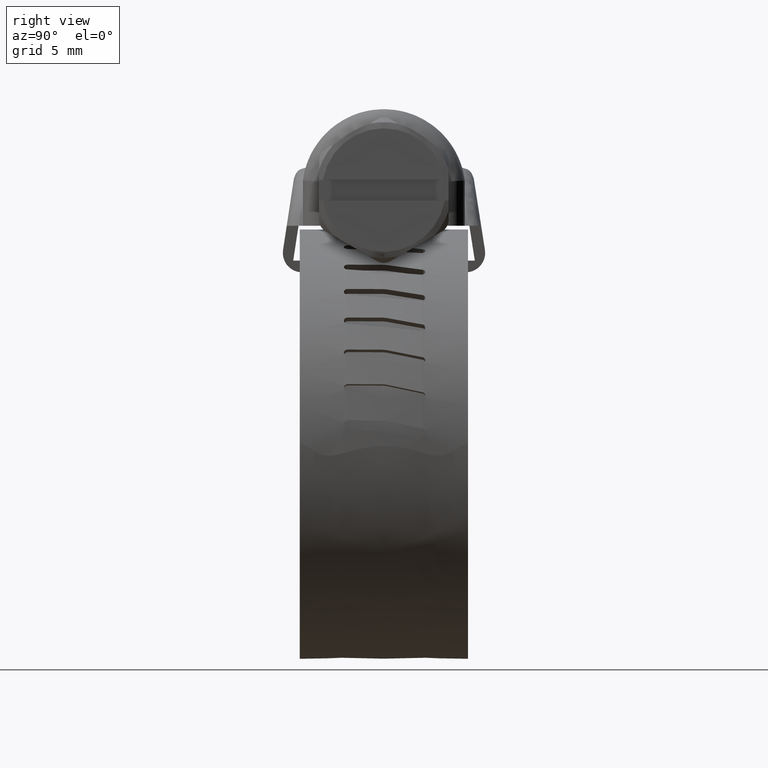
[diagram: clean part render]
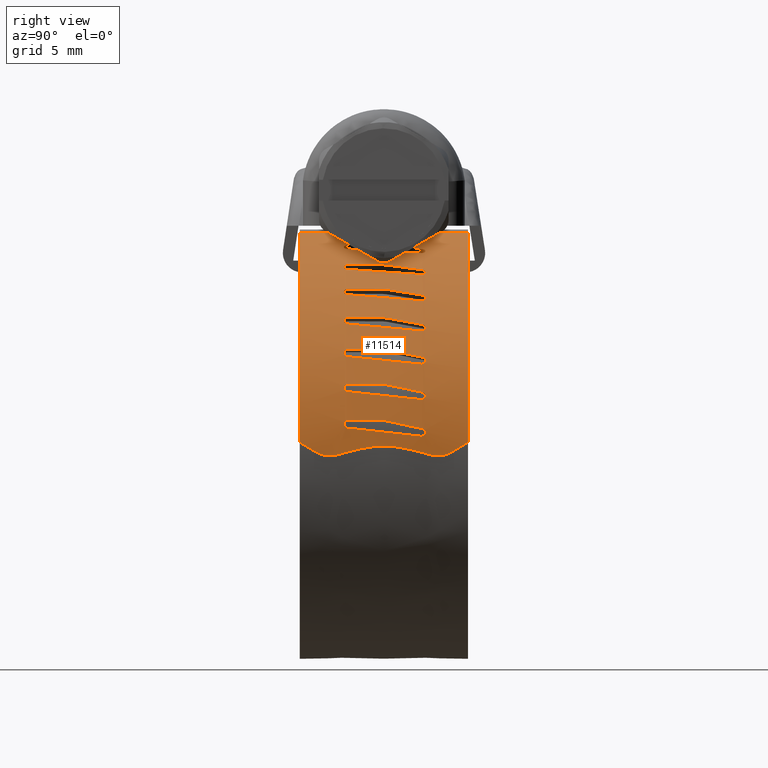
[diagram: same view with one face highlighted and labeled with its STEP entity id]
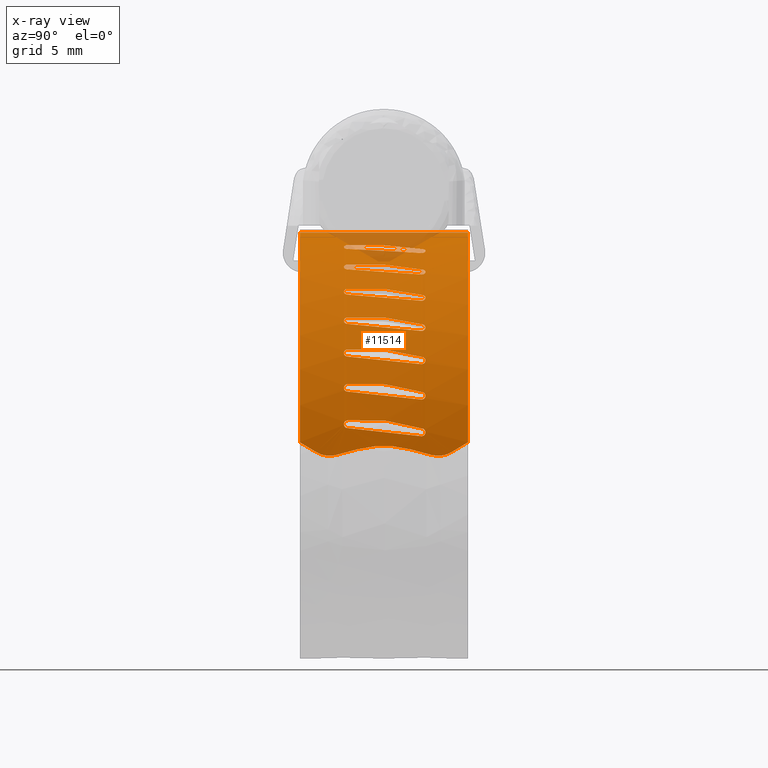
[diagram: x-ray of the same camera — body ghosted, the highlighted face saturated]
A machine part, right view. The second image highlights one B-rep face of the part: STEP entity #11514.
The next image is the same camera in x-ray: the body ghosted, the highlighted face saturated — about 5% of this face is hidden behind the body in this view.
In plain terms, the highlighted face is a freeform B-spline surface patch.
Its self-contained STEP definition (entity closure, byte-faithful):
#9053=CARTESIAN_POINT('',(7.797308189384231,-2.785584999575170,11.566297253011379));
#9054=VERTEX_POINT('',#9053);
#9060=CARTESIAN_POINT('',(8.063311772720567,-3.087113278369086,11.428180453243430));
#9061=VERTEX_POINT('',#9060);
#9062=CARTESIAN_POINT('',(7.797308189384231,-2.785584999575170,11.566297253011379));
#9063=CARTESIAN_POINT('',(7.797394998951416,-2.820000884762843,11.566593422304660));
#9064=CARTESIAN_POINT('',(7.808913288021627,-2.893756322517823,11.561216364056691));
#9065=CARTESIAN_POINT('',(7.861413636961879,-2.992788688389000,11.534349637199769));
#9066=CARTESIAN_POINT('',(7.950438511629019,-3.067739490190386,11.487867160230151));
#9067=CARTESIAN_POINT('',(8.024210775156497,-3.086961751778805,11.448922056701520));
#9068=CARTESIAN_POINT('',(8.063311772720567,-3.087113278369086,11.428180453243430));
#9069=B_SPLINE_CURVE_WITH_KNOTS('',3,(#9062,#9063,#9064,#9065,#9066,#9067,#9068),.UNSPECIFIED.,.F.,.U.,(4,1,1,1,4),(0.000000064163639,0.103258739811784,0.221270167520050,0.339278826905765,0.472040238099272),.UNSPECIFIED.);
#9070=EDGE_CURVE('',#9054,#9061,#9069,.T.);
#9072=CARTESIAN_POINT('',(8.329418577167751,-2.788650713555960,11.284042701344880));
#9073=VERTEX_POINT('',#9072);
#9074=CARTESIAN_POINT('',(8.063311772720567,-3.087113278369086,11.428180453243430));
#9075=CARTESIAN_POINT('',(8.102401161946995,-3.087392402927335,11.407446268905760));
#9076=CARTESIAN_POINT('',(8.176158574174531,-3.068991103170492,11.368134911015551));
#9077=CARTESIAN_POINT('',(8.265192963000301,-2.995061380963704,11.320166942901160));
#9078=CARTESIAN_POINT('',(8.317738188286059,-2.896656498300431,11.291313138267780));
#9079=CARTESIAN_POINT('',(8.329305739930733,-2.823054246103230,11.284444660616490));
#9080=CARTESIAN_POINT('',(8.329418577167751,-2.788650713555960,11.284042701344880));
#9081=B_SPLINE_CURVE_WITH_KNOTS('',3,(#9074,#9075,#9076,#9077,#9078,#9079,#9080),.UNSPECIFIED.,.F.,.U.,(4,1,1,1,4),(0.000000073938458,0.132721764838549,0.250695119492888,0.368671238378687,0.471899020766598),.UNSPECIFIED.);
#9082=EDGE_CURVE('',#9061,#9073,#9081,.T.);
#9123=CARTESIAN_POINT('',(7.809643148795070,-0.091803432220742,11.560022101199220));
#9124=VERTEX_POINT('',#9123);
#9130=CARTESIAN_POINT('',(7.809643148795070,-0.091803432220742,11.560022101199220));
#9131=CARTESIAN_POINT('',(7.797308189384231,-2.785584999575170,11.566297253011379));
#9132=QUASI_UNIFORM_CURVE('',1,(#9130,#9131),.UNSPECIFIED.,.F.,.U.);
#9133=EDGE_CURVE('',#9124,#9054,#9132,.T.);
#9160=CARTESIAN_POINT('',(7.839869285967541,0.217042999999876,11.544592337731020));
#9161=VERTEX_POINT('',#9160);
#9167=CARTESIAN_POINT('',(7.839869285967541,0.217042999999876,11.544592337731020));
#9168=CARTESIAN_POINT('',(7.820241604974052,0.115653097528554,11.554619572060510));
#9169=CARTESIAN_POINT('',(7.810090463714582,0.011953692038363,11.559801503288520));
#9170=CARTESIAN_POINT('',(7.809643148795070,-0.091803432220742,11.560022101199220));
#9171=B_SPLINE_CURVE_WITH_KNOTS('',3,(#9167,#9168,#9169,#9170),.UNSPECIFIED.,.F.,.U.,(4,4),(8.758472E-010,0.311274114652742),.UNSPECIFIED.);
#9172=EDGE_CURVE('',#9161,#9124,#9171,.T.);
#9192=CARTESIAN_POINT('',(8.354952731913670,2.911274713555845,11.269891885491440));
#9193=VERTEX_POINT('',#9192);
#9199=CARTESIAN_POINT('',(8.354952731913670,2.911274713555845,11.269891885491440));
#9200=CARTESIAN_POINT('',(7.839869285967541,0.217042999999876,11.544592337731020));
#9201=QUASI_UNIFORM_CURVE('',1,(#9199,#9200),.UNSPECIFIED.,.F.,.U.);
#9202=EDGE_CURVE('',#9193,#9161,#9201,.T.);
#9233=CARTESIAN_POINT('',(8.869114641156230,2.845777941562945,10.972657751877920));
#9234=VERTEX_POINT('',#9233);
#9240=CARTESIAN_POINT('',(8.644831131166866,3.207943773632811,11.105229610269850));
#9241=VERTEX_POINT('',#9240);
#9242=CARTESIAN_POINT('',(8.869114641156230,2.845777941562945,10.972657751877920));
#9243=CARTESIAN_POINT('',(8.876517277993035,2.884167238096088,10.968752222984710));
#9244=CARTESIAN_POINT('',(8.877668744067391,2.948219580496127,10.968687083337560));
#9245=CARTESIAN_POINT('',(8.855954895200521,3.031433167839265,10.981971563810561));
#9246=CARTESIAN_POINT('',(8.819176248393278,3.104174479140656,11.003835757159999));
#9247=CARTESIAN_POINT('',(8.751174297924919,3.175837534267008,11.043674875702390));
#9248=CARTESIAN_POINT('',(8.683174758995826,3.203113329906056,11.083098118521010));
#9249=CARTESIAN_POINT('',(8.644831131166866,3.207943773632811,11.105229610269850));
#9250=B_SPLINE_CURVE_WITH_KNOTS('',3,(#9242,#9243,#9244,#9245,#9246,#9247,#9248,#9249),.UNSPECIFIED.,.F.,.U.,(4,1,1,1,1,4),(0.000000130089379,0.117853462216903,0.188573708296124,0.259260714200234,0.369274339221615,0.502841884099284),.UNSPECIFIED.);
#9251=EDGE_CURVE('',#9234,#9241,#9250,.T.);
#9253=CARTESIAN_POINT('',(8.644831131166866,3.207943773632811,11.105229610269850));
#9254=CARTESIAN_POINT('',(8.601999808421088,3.213521647819277,11.130029606020569));
#9255=CARTESIAN_POINT('',(8.537135616587460,3.202919864251589,11.167405733887600));
#9256=CARTESIAN_POINT('',(8.456945240556241,3.151858109368478,11.213252018538430));
#9257=CARTESIAN_POINT('',(8.407717269422271,3.095930017769621,11.241162657451900));
#9258=CARTESIAN_POINT('',(8.366768243039680,3.013341584193939,11.264036262031579));
#9259=CARTESIAN_POINT('',(8.355286347378927,2.950580669643654,11.270073100855930));
#9260=CARTESIAN_POINT('',(8.354952731913670,2.911274713555845,11.269891885491440));
#9261=B_SPLINE_CURVE_WITH_KNOTS('',3,(#9253,#9254,#9255,#9256,#9257,#9258,#9259,#9260),.UNSPECIFIED.,.F.,.U.,(4,1,1,1,1,4),(0.000000124460650,0.149342726952405,0.220089882527502,0.314395132339295,0.385143914104173,0.503044810282458),.UNSPECIFIED.);
#9262=EDGE_CURVE('',#9241,#9193,#9261,.T.);
#9297=CARTESIAN_POINT('',(8.329418577167751,-2.788650713555960,11.284042701344880));
#9298=CARTESIAN_POINT('',(8.869114641156230,2.845777941562945,10.972657751877920));
#9299=QUASI_UNIFORM_CURVE('',1,(#9297,#9298),.UNSPECIFIED.,.F.,.U.);
#9300=EDGE_CURVE('',#9073,#9234,#9299,.T.);
#9331=CARTESIAN_POINT('',(10.222582227950300,-2.785584999575170,10.068959826333700));
#9332=VERTEX_POINT('',#9331);
#9338=CARTESIAN_POINT('',(10.462141885021490,-3.087113278369086,9.888833960812063));
#9339=VERTEX_POINT('',#9338);
#9340=CARTESIAN_POINT('',(10.222582227950300,-2.785584999575170,10.068959826333700));
#9341=CARTESIAN_POINT('',(10.222719359082470,-2.820000573663110,10.069235588500280));
#9342=CARTESIAN_POINT('',(10.233185956568191,-2.893756481430902,10.062036002490361));
#9343=CARTESIAN_POINT('',(10.280537030436060,-2.992790930393598,10.026868854805681));
#9344=CARTESIAN_POINT('',(10.360668648011231,-3.067732459768447,9.966330804861009));
#9345=CARTESIAN_POINT('',(10.426999215319119,-3.086967761489118,9.915745671393696));
#9346=CARTESIAN_POINT('',(10.462141885021490,-3.087113278369086,9.888833960812063));
#9347=B_SPLINE_CURVE_WITH_KNOTS('',3,(#9340,#9341,#9342,#9343,#9344,#9345,#9346),.UNSPECIFIED.,.F.,.U.,(4,1,1,1,4),(0.000000064163497,0.103258739811705,0.221270167520045,0.339278826905822,0.472040238099362),.UNSPECIFIED.);
#9348=EDGE_CURVE('',#9332,#9339,#9347,.T.);
#9350=CARTESIAN_POINT('',(10.700809603853861,-2.788650713555960,9.702752680499369));
#9351=VERTEX_POINT('',#9350);
#9352=CARTESIAN_POINT('',(10.462141885021490,-3.087113278369086,9.888833960812063));
#9353=CARTESIAN_POINT('',(10.505098336245521,-3.087515210166132,9.855941046000433));
#9354=CARTESIAN_POINT('',(10.571258507207681,-3.064665191593485,9.805020749562809));
#9355=CARTESIAN_POINT('',(10.647503347054689,-2.986477701803882,9.745765040046919));
#9356=CARTESIAN_POINT('',(10.690494756291541,-2.896660181948622,9.711847145801832));
#9357=CARTESIAN_POINT('',(10.700763805384851,-2.823053953199197,9.703168399247147));
#9358=CARTESIAN_POINT('',(10.700809603853861,-2.788650713555960,9.702752680499369));
#9359=B_SPLINE_CURVE_WITH_KNOTS('',3,(#9352,#9353,#9354,#9355,#9356,#9357,#9358),.UNSPECIFIED.,.F.,.U.,(4,1,1,1,4),(0.000000073938581,0.162216204181219,0.250695119492890,0.368671238378675,0.471899020766574),.UNSPECIFIED.);
#9360=EDGE_CURVE('',#9339,#9351,#9359,.T.);
#9401=CARTESIAN_POINT('',(10.233712322029740,-0.091803432220742,10.060734878934440));
#9402=VERTEX_POINT('',#9401);
#9408=CARTESIAN_POINT('',(10.233712322029740,-0.091803432220742,10.060734878934440));
#9409=CARTESIAN_POINT('',(10.222582227950300,-2.785584999575170,10.068959826333700));
#9410=QUASI_UNIFORM_CURVE('',1,(#9408,#9409),.UNSPECIFIED.,.F.,.U.);
#9411=EDGE_CURVE('',#9402,#9332,#9410,.T.);
#9438=CARTESIAN_POINT('',(10.260977280393700,0.217042999999876,10.040527973816140));
#9439=VERTEX_POINT('',#9438);
#9445=CARTESIAN_POINT('',(10.260977280393700,0.217042999999876,10.040527973816140));
#9446=CARTESIAN_POINT('',(10.243274106855999,0.115652953496238,10.053656929251190));
#9447=CARTESIAN_POINT('',(10.234116667583830,0.011953770716290,10.060443793950220));
#9448=CARTESIAN_POINT('',(10.233712322029740,-0.091803432220742,10.060734878934440));
#9449=B_SPLINE_CURVE_WITH_KNOTS('',3,(#9445,#9446,#9447,#9448),.UNSPECIFIED.,.F.,.U.,(4,4),(8.758492E-010,0.311274114652738),.UNSPECIFIED.);
#9450=EDGE_CURVE('',#9439,#9402,#9449,.T.);
#9470=CARTESIAN_POINT('',(10.723658014749279,2.911274713555845,9.684581583464190));
#9471=VERTEX_POINT('',#9470);
#9477=CARTESIAN_POINT('',(10.723658014749279,2.911274713555845,9.684581583464190));
#9478=CARTESIAN_POINT('',(10.260977280393700,0.217042999999876,10.040527973816140));
#9479=QUASI_UNIFORM_CURVE('',1,(#9477,#9478),.UNSPECIFIED.,.F.,.U.);
#9480=EDGE_CURVE('',#9471,#9439,#9479,.T.);
#9511=CARTESIAN_POINT('',(11.181710720561400,2.845777941562945,9.306562645051010));
#9512=VERTEX_POINT('',#9511);
#9518=CARTESIAN_POINT('',(10.982383791828640,3.207943773632814,9.474333816509807));
#9519=VERTEX_POINT('',#9518);
#9520=CARTESIAN_POINT('',(11.181710720561400,2.845777941562945,9.306562645051010));
#9521=CARTESIAN_POINT('',(11.186573121053049,2.873928166082021,9.302857538636758));
#9522=CARTESIAN_POINT('',(11.190307993583090,2.937287589355952,9.300448908240400));
#9523=CARTESIAN_POINT('',(11.174368692977000,3.022347373758862,9.314452625762224));
#9524=CARTESIAN_POINT('',(11.139632811559069,3.099614153672520,9.343837714185721));
#9525=CARTESIAN_POINT('',(11.080894695090141,3.173014759318327,9.392927754143617));
#9526=CARTESIAN_POINT('',(11.020578629115130,3.202579928163061,9.442856597783223));
#9527=CARTESIAN_POINT('',(10.982383791828640,3.207943773632814,9.474333816509807));
#9528=B_SPLINE_CURVE_WITH_KNOTS('',3,(#9520,#9521,#9522,#9523,#9524,#9525,#9526,#9527),.UNSPECIFIED.,.F.,.U.,(4,1,1,1,1,4),(0.000000130088811,0.086423112604356,0.188573708295906,0.259260714200085,0.353559524218403,0.502841884099328),.UNSPECIFIED.);
#9529=EDGE_CURVE('',#9512,#9519,#9528,.T.);
#9531=CARTESIAN_POINT('',(10.982383791828640,3.207943773632814,9.474333816509807));
#9532=CARTESIAN_POINT('',(10.952270666425241,3.212308749697686,9.499219939703661));
#9533=CARTESIAN_POINT('',(10.902994137423301,3.206716357779389,9.539807103627831));
#9534=CARTESIAN_POINT('',(10.835322832949769,3.169724423166637,9.595232302769034));
#9535=CARTESIAN_POINT('',(10.774232458276810,3.106790923961660,9.644952034976274));
#9536=CARTESIAN_POINT('',(10.732853901925900,3.013400980225050,9.678086767565651));
#9537=CARTESIAN_POINT('',(10.723943000564020,2.940088973772381,9.684654218932939));
#9538=CARTESIAN_POINT('',(10.723658014749279,2.911274713555845,9.684581583464190));
#9539=B_SPLINE_CURVE_WITH_KNOTS('',3,(#9531,#9532,#9533,#9534,#9535,#9536,#9537,#9538),.UNSPECIFIED.,.F.,.U.,(4,1,1,1,1,4),(0.000000124460454,0.117901016340112,0.188649825497930,0.282955091755710,0.416586949364381,0.503044810282286),.UNSPECIFIED.);
#9540=EDGE_CURVE('',#9519,#9471,#9539,.T.);
#9575=CARTESIAN_POINT('',(10.700809603853861,-2.788650713555960,9.702752680499369));
#9576=CARTESIAN_POINT('',(11.181710720561400,2.845777941562945,9.306562645051010));
#9577=QUASI_UNIFORM_CURVE('',1,(#9575,#9576),.UNSPECIFIED.,.F.,.U.);
#9578=EDGE_CURVE('',#9351,#9512,#9577,.T.);
#9609=CARTESIAN_POINT('',(12.367463134531420,-2.785584999575170,8.191871808137101));
#9610=VERTEX_POINT('',#9609);
#9616=CARTESIAN_POINT('',(12.574008032152690,-3.087113278369085,7.974677512647652));
#9617=VERTEX_POINT('',#9616);
#9618=CARTESIAN_POINT('',(12.367463134531420,-2.785584999575170,8.191871808137101));
#9619=CARTESIAN_POINT('',(12.367643947076820,-2.819997542338296,8.192121064632842));
#9620=CARTESIAN_POINT('',(12.376778658218990,-2.893760189747853,8.183292890139152));
#9621=CARTESIAN_POINT('',(12.417676560980800,-2.992786760581442,8.140792248729284));
#9622=CARTESIAN_POINT('',(12.486715964091539,-3.067740242066955,8.067860773564600));
#9623=CARTESIAN_POINT('',(12.543789638365491,-3.086961624877670,8.007019635563335));
#9624=CARTESIAN_POINT('',(12.574008032152690,-3.087113278369085,7.974677512647652));
#9625=B_SPLINE_CURVE_WITH_KNOTS('',3,(#9618,#9619,#9620,#9621,#9622,#9623,#9624),.UNSPECIFIED.,.F.,.U.,(4,1,1,1,4),(0.000000064163758,0.103258739812114,0.221270167520626,0.339278826906569,0.472040238100330),.UNSPECIFIED.);
#9626=EDGE_CURVE('',#9610,#9617,#9625,.T.);
#9628=CARTESIAN_POINT('',(12.778690296976979,-2.788650713555960,7.751756689570880));
#9629=VERTEX_POINT('',#9628);
#9630=CARTESIAN_POINT('',(12.574008032152690,-3.087113278369085,7.974677512647652));
#9631=CARTESIAN_POINT('',(12.604217369336070,-3.087391466916029,7.942346701310830));
#9632=CARTESIAN_POINT('',(12.661157168117780,-3.068991574900297,7.881164761777377));
#9633=CARTESIAN_POINT('',(12.729724890133649,-2.995061349934346,7.806822429348985));
#9634=CARTESIAN_POINT('',(12.770013450016840,-2.896656103468633,7.762433614437756));
#9635=CARTESIAN_POINT('',(12.778714396424879,-2.823054371814502,7.752173568689317));
#9636=CARTESIAN_POINT('',(12.778690296976979,-2.788650713555960,7.751756689570880));
#9637=B_SPLINE_CURVE_WITH_KNOTS('',3,(#9630,#9631,#9632,#9633,#9634,#9635,#9636),.UNSPECIFIED.,.F.,.U.,(4,1,1,1,4),(0.000000073938655,0.132721764838378,0.250695119492347,0.368671238377882,0.471899020765564),.UNSPECIFIED.);
#9638=EDGE_CURVE('',#9617,#9629,#9637,.T.);
#9679=CARTESIAN_POINT('',(12.377083078189520,-0.091803432220742,8.181922665563391));
#9680=VERTEX_POINT('',#9679);
#9686=CARTESIAN_POINT('',(12.377083078189520,-0.091803432220742,8.181922665563391));
#9687=CARTESIAN_POINT('',(12.367463134531420,-2.785584999575170,8.191871808137101));
#9688=QUASI_UNIFORM_CURVE('',1,(#9686,#9687),.UNSPECIFIED.,.F.,.U.);
#9689=EDGE_CURVE('',#9680,#9610,#9688,.T.);
#9716=CARTESIAN_POINT('',(12.400639012738401,0.217042999999876,8.157492869891440));
#9717=VERTEX_POINT('',#9716);
#9723=CARTESIAN_POINT('',(12.400639012738401,0.217042999999876,8.157492869891440));
#9724=CARTESIAN_POINT('',(12.385343069303740,0.115653270921712,8.173366191503858));
#9725=CARTESIAN_POINT('',(12.377436285528180,0.011953310195004,8.181566292192574));
#9726=CARTESIAN_POINT('',(12.377083078189520,-0.091803432220742,8.181922665563391));
#9727=B_SPLINE_CURVE_WITH_KNOTS('',3,(#9723,#9724,#9725,#9726),.UNSPECIFIED.,.F.,.U.,(4,4),(8.758434E-010,0.311274114652742),.UNSPECIFIED.);
#9728=EDGE_CURVE('',#9717,#9680,#9727,.T.);
#9748=CARTESIAN_POINT('',(12.798226259600019,2.911274713555845,7.730063722685250));
#9749=VERTEX_POINT('',#9748);
#9755=CARTESIAN_POINT('',(12.798226259600019,2.911274713555845,7.730063722685250));
#9756=CARTESIAN_POINT('',(12.400639012738401,0.217042999999876,8.157492869891440));
#9757=QUASI_UNIFORM_CURVE('',1,(#9755,#9756),.UNSPECIFIED.,.F.,.U.);
#9758=EDGE_CURVE('',#9749,#9717,#9757,.T.);
#9789=CARTESIAN_POINT('',(13.187605927332120,2.845777941562945,7.281628584167231));
#9790=VERTEX_POINT('',#9789);
#9796=CARTESIAN_POINT('',(13.018702877706581,3.207943773632809,7.479997307300595));
#9797=VERTEX_POINT('',#9796);
#9798=CARTESIAN_POINT('',(13.187605927332120,2.845777941562945,7.281628584167231));
#9799=CARTESIAN_POINT('',(13.193333799052541,2.884167335214374,7.275525707092004));
#9800=CARTESIAN_POINT('',(13.194401148994469,2.948219536193870,7.275089435084387));
#9801=CARTESIAN_POINT('',(13.178192979406660,3.031428142783767,7.294722104732347));
#9802=CARTESIAN_POINT('',(13.148821452929131,3.108744518484833,7.329394214101757));
#9803=CARTESIAN_POINT('',(13.095996608806530,3.178642119105988,7.390900218848493));
#9804=CARTESIAN_POINT('',(13.044327094690470,3.203658844576371,7.450526955042602));
#9805=CARTESIAN_POINT('',(13.018702877706581,3.207943773632809,7.479997307300595));
#9806=B_SPLINE_CURVE_WITH_KNOTS('',3,(#9798,#9799,#9800,#9801,#9802,#9803,#9804,#9805),.UNSPECIFIED.,.F.,.U.,(4,1,1,1,1,4),(0.000000130088226,0.117853462215990,0.188573708295349,0.259260714199558,0.384988551965807,0.502841884098969),.UNSPECIFIED.);
#9807=EDGE_CURVE('',#9790,#9797,#9806,.T.);
#9809=CARTESIAN_POINT('',(13.018702877706581,3.207943773632809,7.479997307300595));
#9810=CARTESIAN_POINT('',(12.993111204492401,3.212307251939225,7.509510976733799));
#9811=CARTESIAN_POINT('',(12.951205145475910,3.206721434305238,7.557679335975333));
#9812=CARTESIAN_POINT('',(12.898413989132560,3.172802248654576,7.618021737208997));
#9813=CARTESIAN_POINT('',(12.853535163340270,3.122706249486623,7.669052960315214));
#9814=CARTESIAN_POINT('',(12.811590015331150,3.036864778405960,7.716258172974960));
#9815=CARTESIAN_POINT('',(12.798637512195731,2.955825796474375,7.730149959804009));
#9816=CARTESIAN_POINT('',(12.798226259600019,2.911274713555845,7.730063722685250));
#9817=B_SPLINE_CURVE_WITH_KNOTS('',3,(#9809,#9810,#9811,#9812,#9813,#9814,#9815,#9816),.UNSPECIFIED.,.F.,.U.,(4,1,1,1,1,4),(0.000000124461104,0.117901016340661,0.188649825498452,0.259365323894124,0.369423359071592,0.503044810282945),.UNSPECIFIED.);
#9818=EDGE_CURVE('',#9797,#9749,#9817,.T.);
#9854=CARTESIAN_POINT('',(12.778690296976979,-2.788650713555960,7.751756689570880));
#9855=CARTESIAN_POINT('',(13.187605927332120,2.845777941562945,7.281628584167231));
#9856=QUASI_UNIFORM_CURVE('',1,(#9854,#9855),.UNSPECIFIED.,.F.,.U.);
#9857=EDGE_CURVE('',#9629,#9790,#9856,.T.);
#9888=CARTESIAN_POINT('',(14.173119406311420,-2.785584999575170,5.986519464484380));
#9889=VERTEX_POINT('',#9888);
#9895=CARTESIAN_POINT('',(14.340984266428590,-3.087113278369086,5.738214117252737));
#9896=VERTEX_POINT('',#9895);
#9897=CARTESIAN_POINT('',(14.173119406311420,-2.785584999575170,5.986519464484380));
#9898=CARTESIAN_POINT('',(14.173336945989860,-2.819999975964868,5.986738412021158));
#9899=CARTESIAN_POINT('',(14.180893830252019,-2.893757256254618,5.976516749247937));
#9900=CARTESIAN_POINT('',(14.214212459399860,-2.992788449144992,5.927854611717942));
#9901=CARTESIAN_POINT('',(14.270268863595490,-3.067739097638723,5.844527006394900));
#9902=CARTESIAN_POINT('',(14.316518604400310,-3.086962732804008,5.775099704060509));
#9903=CARTESIAN_POINT('',(14.340984266428590,-3.087113278369086,5.738214117252737));
#9904=B_SPLINE_CURVE_WITH_KNOTS('',3,(#9897,#9898,#9899,#9900,#9901,#9902,#9903),.UNSPECIFIED.,.F.,.U.,(4,1,1,1,4),(0.000000064163556,0.103258739811740,0.221270167520062,0.339278826905827,0.472040238099390),.UNSPECIFIED.);
#9905=EDGE_CURVE('',#9889,#9896,#9904,.T.);
#9907=CARTESIAN_POINT('',(14.506066888970000,-2.788650713555960,5.484568201397100));
#9908=VERTEX_POINT('',#9907);
#9909=CARTESIAN_POINT('',(14.340984266428590,-3.087113278369086,5.738214117252737));
#9910=CARTESIAN_POINT('',(14.365443890022860,-3.087397114531472,5.701339740548812));
#9911=CARTESIAN_POINT('',(14.411503792039619,-3.068985236674140,5.631600518391577));
#9912=CARTESIAN_POINT('',(14.466860441252550,-2.995062210299479,5.546961953314815));
#9913=CARTESIAN_POINT('',(14.499273682467010,-2.896659167413903,5.496527158510143));
#9914=CARTESIAN_POINT('',(14.506157571456740,-2.823051759720944,5.484978195877698));
#9915=CARTESIAN_POINT('',(14.506066888970000,-2.788650713555960,5.484568201397100));
#9916=B_SPLINE_CURVE_WITH_KNOTS('',3,(#9909,#9910,#9911,#9912,#9913,#9914,#9915),.UNSPECIFIED.,.F.,.U.,(4,1,1,1,4),(0.000000073938449,0.132721764838500,0.250695119492777,0.368671238378587,0.471899020766493),.UNSPECIFIED.);
#9917=EDGE_CURVE('',#9896,#9908,#9916,.T.);
#9958=CARTESIAN_POINT('',(14.180965336066720,-0.091803432220742,5.975119019747070));
#9959=VERTEX_POINT('',#9958);
#9965=CARTESIAN_POINT('',(14.180965336066720,-0.091803432220742,5.975119019747070));
#9966=CARTESIAN_POINT('',(14.173119406311420,-2.785584999575170,5.986519464484380));
#9967=QUASI_UNIFORM_CURVE('',1,(#9965,#9966),.UNSPECIFIED.,.F.,.U.);
#9968=EDGE_CURVE('',#9959,#9889,#9967,.T.);
#9995=CARTESIAN_POINT('',(14.200166135855760,0.217042999999876,5.947136413426190));
#9996=VERTEX_POINT('',#9995);
#10002=CARTESIAN_POINT('',(14.200166135855760,0.217042999999876,5.947136413426190));
#10003=CARTESIAN_POINT('',(14.187701825004060,0.115652939152389,5.965313675977162));
#10004=CARTESIAN_POINT('',(14.181252884533761,0.011953777904150,5.974712151107689));
#10005=CARTESIAN_POINT('',(14.180965336066720,-0.091803432220742,5.975119019747070));
#10006=B_SPLINE_CURVE_WITH_KNOTS('',3,(#10002,#10003,#10004,#10005),.UNSPECIFIED.,.F.,.U.,(4,4),(8.758422E-010,0.311274114652733),.UNSPECIFIED.);
#10007=EDGE_CURVE('',#9996,#9959,#10006,.T.);
#10027=CARTESIAN_POINT('',(14.521754555369080,2.911274713555845,5.459948376644261));
#10028=VERTEX_POINT('',#10027);
#10034=CARTESIAN_POINT('',(14.521754555369080,2.911274713555845,5.459948376644261));
#10035=CARTESIAN_POINT('',(14.200166135855760,0.217042999999876,5.947136413426190));
#10036=QUASI_UNIFORM_CURVE('',1,(#10034,#10035),.UNSPECIFIED.,.F.,.U.);
#10037=EDGE_CURVE('',#10028,#9996,#10036,.T.);
#10068=CARTESIAN_POINT('',(14.831780969188120,2.845777941562945,4.953397074370450));
#10069=VERTEX_POINT('',#10068);
#10075=CARTESIAN_POINT('',(14.697934606117110,3.207943773632809,5.176922333756104));
#10076=VERTEX_POINT('',#10075);
#10077=CARTESIAN_POINT('',(14.831780969188120,2.845777941562945,4.953397074370450));
#10078=CARTESIAN_POINT('',(14.836423840789040,2.884168069695474,4.946431200220784));
#10079=CARTESIAN_POINT('',(14.837400974176040,2.948217031086314,4.945830515007041));
#10080=CARTESIAN_POINT('',(14.823508864622440,3.039010008595454,4.969853105109007));
#10081=CARTESIAN_POINT('',(14.799992869674920,3.110374933331098,5.009244723304400));
#10082=CARTESIAN_POINT('',(14.758051656018770,3.178470341726387,5.078585341021686));
#10083=CARTESIAN_POINT('',(14.721070894877879,3.203110526174266,5.139177593042870));
#10084=CARTESIAN_POINT('',(14.697934606117110,3.207943773632809,5.176922333756104));
#10085=B_SPLINE_CURVE_WITH_KNOTS('',3,(#10077,#10078,#10079,#10080,#10081,#10082,#10083,#10084),.UNSPECIFIED.,.F.,.U.,(4,1,1,1,1,4),(0.000000130089012,0.117853462216591,0.188573708295869,0.282840940596721,0.369274339221605,0.502841884099412),.UNSPECIFIED.);
#10086=EDGE_CURVE('',#10069,#10076,#10085,.T.);
#10088=CARTESIAN_POINT('',(14.697934606117110,3.207943773632809,5.176922333756104));
#10089=CARTESIAN_POINT('',(14.684357729969220,3.210828075403412,5.199139180061596));
#10090=CARTESIAN_POINT('',(14.651230257322201,3.209525402909313,5.253216543551585));
#10091=CARTESIAN_POINT('',(14.607672657829671,3.180660580318119,5.323891746006067));
#10092=CARTESIAN_POINT('',(14.566236783962800,3.122697554592248,5.390643096699340));
#10093=CARTESIAN_POINT('',(14.532653239972619,3.036876849333672,5.444131958410916));
#10094=CARTESIAN_POINT('',(14.522176478834609,2.955819623682183,5.459962064473671));
#10095=CARTESIAN_POINT('',(14.521754555369080,2.911274713555845,5.459948376644261));
#10096=B_SPLINE_CURVE_WITH_KNOTS('',3,(#10088,#10089,#10090,#10091,#10092,#10093,#10094,#10095),.UNSPECIFIED.,.F.,.U.,(4,1,1,1,1,4),(0.000000124460317,0.078594294291567,0.188649825497876,0.259365323893529,0.369423359070890,0.503044810282099),.UNSPECIFIED.);
#10097=EDGE_CURVE('',#10076,#10028,#10096,.T.);
#10132=CARTESIAN_POINT('',(14.506066888970000,-2.788650713555960,5.484568201397100));
#10133=CARTESIAN_POINT('',(14.831780969188120,2.845777941562945,4.953397074370450));
#10134=QUASI_UNIFORM_CURVE('',1,(#10132,#10133),.UNSPECIFIED.,.F.,.U.);
#10135=EDGE_CURVE('',#9908,#10069,#10134,.T.);
#10166=CARTESIAN_POINT('',(15.590024064094500,-2.785584999575170,3.513392956958745));
#10167=VERTEX_POINT('',#10166);
#10173=CARTESIAN_POINT('',(15.714604555549260,-3.087113278369086,3.240787274928189));
#10174=VERTEX_POINT('',#10173);
#10175=CARTESIAN_POINT('',(15.590024064094500,-2.785584999575170,3.513392956958745));
#10176=CARTESIAN_POINT('',(15.590274795137150,-2.820000090729377,3.513572914646380));
#10177=CARTESIAN_POINT('',(15.596040899161080,-2.893756550008100,3.502244354279631));
#10178=CARTESIAN_POINT('',(15.620870661226990,-2.992790928819789,3.448751287845621));
#10179=CARTESIAN_POINT('',(15.662406841634940,-3.067732451209866,3.357310763614503));
#10180=CARTESIAN_POINT('',(15.696561665165710,-3.086967763565635,3.281206534776206));
#10181=CARTESIAN_POINT('',(15.714604555549260,-3.087113278369086,3.240787274928189));
#10182=B_SPLINE_CURVE_WITH_KNOTS('',3,(#10175,#10176,#10177,#10178,#10179,#10180,#10181),.UNSPECIFIED.,.F.,.U.,(4,1,1,1,4),(0.000000064163851,0.103258739812116,0.221270167520538,0.339278826906459,0.472040238100189),.UNSPECIFIED.);
#10183=EDGE_CURVE('',#10167,#10174,#10182,.T.);
#10185=CARTESIAN_POINT('',(15.835559518077400,-2.788650713555960,2.963373468612210));
#10186=VERTEX_POINT('',#10185);
#10187=CARTESIAN_POINT('',(15.714604555549260,-3.087113278369086,3.240787274928189));
#10188=CARTESIAN_POINT('',(15.732642507674649,-3.087391360428489,3.200381918334748));
#10189=CARTESIAN_POINT('',(15.766560790181460,-3.068991867019648,3.123996520458136));
#10190=CARTESIAN_POINT('',(15.807189457481380,-2.995060594179667,3.031380732012975));
#10191=CARTESIAN_POINT('',(15.830831504388110,-2.896657379556305,2.976293543317059));
#10192=CARTESIAN_POINT('',(15.835717899365919,-2.823053999665561,2.963760067739513));
#10193=CARTESIAN_POINT('',(15.835559518077400,-2.788650713555960,2.963373468612210));
#10194=B_SPLINE_CURVE_WITH_KNOTS('',3,(#10187,#10188,#10189,#10190,#10191,#10192,#10193),.UNSPECIFIED.,.F.,.U.,(4,1,1,1,4),(0.000000073938617,0.132721764838398,0.250695119492404,0.368671238377979,0.471899020765693),.UNSPECIFIED.);
#10195=EDGE_CURVE('',#10174,#10186,#10194,.T.);
#10236=CARTESIAN_POINT('',(15.595880775533001,-0.091803432220742,3.500853910541280));
#10237=VERTEX_POINT('',#10236);
#10243=CARTESIAN_POINT('',(15.595880775533001,-0.091803432220742,3.500853910541280));
#10244=CARTESIAN_POINT('',(15.590024064094500,-2.785584999575170,3.513392956958745));
#10245=QUASI_UNIFORM_CURVE('',1,(#10243,#10244),.UNSPECIFIED.,.F.,.U.);
#10246=EDGE_CURVE('',#10237,#10167,#10245,.T.);
#10273=CARTESIAN_POINT('',(15.610199785723950,0.217042999999876,3.470086022797690));
#10274=VERTEX_POINT('',#10273);
#10280=CARTESIAN_POINT('',(15.610199785723950,0.217042999999876,3.470086022797690));
#10281=CARTESIAN_POINT('',(15.600906343913451,0.115653097528560,3.490071598315950));
#10282=CARTESIAN_POINT('',(15.596097450864571,0.011953692038365,3.500404682452142));
#10283=CARTESIAN_POINT('',(15.595880775533001,-0.091803432220742,3.500853910541280));
#10284=B_SPLINE_CURVE_WITH_KNOTS('',3,(#10280,#10281,#10282,#10283),.UNSPECIFIED.,.F.,.U.,(4,4),(8.758465E-010,0.311274114652740),.UNSPECIFIED.);
#10285=EDGE_CURVE('',#10274,#10237,#10284,.T.);
#10305=CARTESIAN_POINT('',(15.846968594435900,2.911274713555845,2.936502078165260));
#10306=VERTEX_POINT('',#10305);
#10312=CARTESIAN_POINT('',(15.846968594435900,2.911274713555845,2.936502078165260));
#10313=CARTESIAN_POINT('',(15.610199785723950,0.217042999999876,3.470086022797690));
#10314=QUASI_UNIFORM_CURVE('',1,(#10312,#10313),.UNSPECIFIED.,.F.,.U.);
#10315=EDGE_CURVE('',#10306,#10274,#10314,.T.);
#10346=CARTESIAN_POINT('',(16.069138102796298,2.845777941562945,2.385728704938295));
#10347=VERTEX_POINT('',#10346);
#10353=CARTESIAN_POINT('',(15.974019670992501,3.207943773632808,2.628279471627436));
#10354=VERTEX_POINT('',#10353);
#10355=CARTESIAN_POINT('',(16.069138102796298,2.845777941562945,2.385728704938295));
#10356=CARTESIAN_POINT('',(16.072567603553640,2.884168204667264,2.378092061266283));
#10357=CARTESIAN_POINT('',(16.073432169080618,2.948216623267369,2.377338391570627));
#10358=CARTESIAN_POINT('',(16.063695525962380,3.039010741811590,2.403324228847714));
#10359=CARTESIAN_POINT('',(16.047003565186341,3.110375030789273,2.446056775326688));
#10360=CARTESIAN_POINT('',(16.017081348749851,3.178466462617669,2.521370377427510));
#10361=CARTESIAN_POINT('',(15.990609592005891,3.203115383736410,2.587232383468257));
#10362=CARTESIAN_POINT('',(15.974019670992501,3.207943773632808,2.628279471627436));
#10363=B_SPLINE_CURVE_WITH_KNOTS('',3,(#10355,#10356,#10357,#10358,#10359,#10360,#10361,#10362),.UNSPECIFIED.,.F.,.U.,(4,1,1,1,1,4),(0.000000130088020,0.117853462215939,0.188573708295371,0.282840940596321,0.369274339221168,0.502841884098899),.UNSPECIFIED.);
#10364=EDGE_CURVE('',#10347,#10354,#10363,.T.);
#10366=CARTESIAN_POINT('',(15.974019670992501,3.207943773632808,2.628279471627436));
#10367=CARTESIAN_POINT('',(15.961377522984931,3.211704192755008,2.659681455715627));
#10368=CARTESIAN_POINT('',(15.933532482378009,3.207234295057217,2.728565421748487));
#10369=CARTESIAN_POINT('',(15.896785291132160,3.163084454623968,2.818629958284375));
#10370=CARTESIAN_POINT('',(15.870861073856389,3.095924567375059,2.881375607298621));
#10371=CARTESIAN_POINT('',(15.852674201966080,3.013341611824129,2.924613579432059));
#10372=CARTESIAN_POINT('',(15.847343045313270,2.950580554859625,2.936439503440063));
#10373=CARTESIAN_POINT('',(15.846968594435900,2.911274713555845,2.936502078165260));
#10374=B_SPLINE_CURVE_WITH_KNOTS('',3,(#10366,#10367,#10368,#10369,#10370,#10371,#10372,#10373),.UNSPECIFIED.,.F.,.U.,(4,1,1,1,1,4),(0.000000124460647,0.102179857615559,0.220089882527924,0.314395132339788,0.385143914104712,0.503044810283131),.UNSPECIFIED.);
#10375=EDGE_CURVE('',#10354,#10306,#10374,.T.);
#10411=CARTESIAN_POINT('',(15.835559518077400,-2.788650713555960,2.963373468612210));
#10412=CARTESIAN_POINT('',(16.069138102796298,2.845777941562945,2.385728704938295));
#10413=QUASI_UNIFORM_CURVE('',1,(#10411,#10412),.UNSPECIFIED.,.F.,.U.);
#10414=EDGE_CURVE('',#10186,#10347,#10413,.T.);
#10445=CARTESIAN_POINT('',(16.579313117758851,-2.785584999575170,0.840327170306177));
#10446=VERTEX_POINT('',#10445);
#10452=CARTESIAN_POINT('',(16.657192147550081,-3.087113278369085,0.550898399371020));
#10453=VERTEX_POINT('',#10452);
#10454=CARTESIAN_POINT('',(16.579313117758851,-2.785584999575170,0.840327170306177));
#10455=CARTESIAN_POINT('',(16.579590121778761,-2.820000879422974,0.840463266410337));
#10456=CARTESIAN_POINT('',(16.583407377891621,-2.893756319975709,0.828338420551565));
#10457=CARTESIAN_POINT('',(16.599067970479119,-2.992788826285587,0.771479826138911));
#10458=CARTESIAN_POINT('',(16.624941512168121,-3.067738904493009,0.674441885530809));
#10459=CARTESIAN_POINT('',(16.646068177275360,-3.086962792971620,0.593739667840562));
#10460=CARTESIAN_POINT('',(16.657192147550081,-3.087113278369085,0.550898399371020));
#10461=B_SPLINE_CURVE_WITH_KNOTS('',3,(#10454,#10455,#10456,#10457,#10458,#10459,#10460),.UNSPECIFIED.,.F.,.U.,(4,1,1,1,4),(0.000000064163736,0.103258739811975,0.221270167520349,0.339278826906190,0.472040238099855),.UNSPECIFIED.);
#10462=EDGE_CURVE('',#10446,#10453,#10461,.T.);
#10464=CARTESIAN_POINT('',(16.730701800960802,-2.788650713555960,0.257325829551314));
#10465=VERTEX_POINT('',#10464);
#10466=CARTESIAN_POINT('',(16.657192147550081,-3.087113278369085,0.550898399371020));
#10467=CARTESIAN_POINT('',(16.668314094390471,-3.087397342379129,0.508069566187028));
#10468=CARTESIAN_POINT('',(16.689159437986550,-3.068984377225355,0.427135237447285));
#10469=CARTESIAN_POINT('',(16.713945433206199,-2.995064160044429,0.329082261858504));
#10470=CARTESIAN_POINT('',(16.728170972318470,-2.896655340300450,0.270849313630388));
#10471=CARTESIAN_POINT('',(16.730921899702629,-2.823055095281617,0.257680707563779));
#10472=CARTESIAN_POINT('',(16.730701800960802,-2.788650713555960,0.257325829551314));
#10473=B_SPLINE_CURVE_WITH_KNOTS('',3,(#10466,#10467,#10468,#10469,#10470,#10471,#10472),.UNSPECIFIED.,.F.,.U.,(4,1,1,1,4),(0.000000073938563,0.132721764838470,0.250695119492576,0.368671238378239,0.471899020766026),.UNSPECIFIED.);
#10474=EDGE_CURVE('',#10453,#10465,#10473,.T.);
#10515=CARTESIAN_POINT('',(16.583019968332000,-0.091803432220742,0.826993453166419));
#10516=VERTEX_POINT('',#10515);
#10522=CARTESIAN_POINT('',(16.583019968332000,-0.091803432220742,0.826993453166419));
#10523=CARTESIAN_POINT('',(16.579313117758851,-2.785584999575170,0.840327170306177));
#10524=QUASI_UNIFORM_CURVE('',1,(#10522,#10523),.UNSPECIFIED.,.F.,.U.);
#10525=EDGE_CURVE('',#10516,#10446,#10524,.T.);
#10552=CARTESIAN_POINT('',(16.592064435702351,0.217042999999876,0.794284210144998));
#10553=VERTEX_POINT('',#10552);
#10559=CARTESIAN_POINT('',(16.592064435702351,0.217042999999876,0.794284210144998));
#10560=CARTESIAN_POINT('',(16.586197136361811,0.115652946903638,0.815529131208350));
#10561=CARTESIAN_POINT('',(16.583159387539020,0.011953778939764,0.826515133737222));
#10562=CARTESIAN_POINT('',(16.583019968332000,-0.091803432220742,0.826993453166419));
#10563=B_SPLINE_CURVE_WITH_KNOTS('',3,(#10559,#10560,#10561,#10562),.UNSPECIFIED.,.F.,.U.,(4,4),(8.758501E-010,0.311274114652734),.UNSPECIFIED.);
#10564=EDGE_CURVE('',#10553,#10516,#10563,.T.);
#10584=CARTESIAN_POINT('',(16.737519350040849,2.911274713555845,0.228939923322125));
#10585=VERTEX_POINT('',#10584);
#10591=CARTESIAN_POINT('',(16.737519350040849,2.911274713555845,0.228939923322125));
#10592=CARTESIAN_POINT('',(16.592064435702351,0.217042999999876,0.794284210144998));
#10593=QUASI_UNIFORM_CURVE('',1,(#10591,#10592),.UNSPECIFIED.,.F.,.U.);
#10594=EDGE_CURVE('',#10585,#10553,#10593,.T.);
#10625=CARTESIAN_POINT('',(16.865738110614402,2.845777941562945,-0.350948469851767));
#10626=VERTEX_POINT('',#10625);
#10632=CARTESIAN_POINT('',(16.811956594227158,3.207943773632809,-0.096025071581884));
#10633=VERTEX_POINT('',#10632);
#10634=CARTESIAN_POINT('',(16.865738110614402,2.845777941562945,-0.350948469851767));
#10635=CARTESIAN_POINT('',(16.868146170809609,2.889282555366019,-0.360140045306564));
#10636=CARTESIAN_POINT('',(16.868618691629621,2.972485421988558,-0.359164849894492));
#10637=CARTESIAN_POINT('',(16.859421825560521,3.077296491024703,-0.313976063559060));
#10638=CARTESIAN_POINT('',(16.841583634246970,3.168124168130870,-0.230513622882031));
#10639=CARTESIAN_POINT('',(16.823808520504539,3.202051950596228,-0.149451971659182));
#10640=CARTESIAN_POINT('',(16.811956594227158,3.207943773632809,-0.096025071581884));
#10641=B_SPLINE_CURVE_WITH_KNOTS('',3,(#10634,#10635,#10636,#10637,#10638,#10639,#10640),.UNSPECIFIED.,.F.,.U.,(4,1,1,1,4),(0.000000130087459,0.133567674959730,0.243581299991517,0.337843989605692,0.502841884098981),.UNSPECIFIED.);
#10642=EDGE_CURVE('',#10626,#10633,#10641,.T.);
#10644=CARTESIAN_POINT('',(16.811956594227158,3.207943773632809,-0.096025071581884));
#10645=CARTESIAN_POINT('',(16.803548792873389,3.212307265078000,-0.057876179296401));
#10646=CARTESIAN_POINT('',(16.789705290958398,3.206721506249932,0.004449465327645));
#10647=CARTESIAN_POINT('',(16.772104080139901,3.172802568597017,0.082670729018249));
#10648=CARTESIAN_POINT('',(16.757014339718790,3.122701880211344,0.148929527369491));
#10649=CARTESIAN_POINT('',(16.742675040534721,3.036877381612479,0.210436492611570));
#10650=CARTESIAN_POINT('',(16.737922444763470,2.955819814364125,0.228816854398794));
#10651=CARTESIAN_POINT('',(16.737519350040849,2.911274713555845,0.228939923322125));
#10652=B_SPLINE_CURVE_WITH_KNOTS('',3,(#10644,#10645,#10646,#10647,#10648,#10649,#10650,#10651),.UNSPECIFIED.,.F.,.U.,(4,1,1,1,1,4),(0.000000124460800,0.117901016340384,0.188649825498232,0.259365323893940,0.369423359071490,0.503044810282913),.UNSPECIFIED.);
#10653=EDGE_CURVE('',#10633,#10585,#10652,.T.);
#10688=CARTESIAN_POINT('',(16.730701800960802,-2.788650713555960,0.257325829551314));
#10689=CARTESIAN_POINT('',(16.865738110614402,2.845777941562945,-0.350948469851767));
#10690=QUASI_UNIFORM_CURVE('',1,(#10688,#10689),.UNSPECIFIED.,.F.,.U.);
#10691=EDGE_CURVE('',#10465,#10626,#10690,.T.);
#10722=CARTESIAN_POINT('',(17.113851558751598,-2.785584999575170,-1.959358916842555));
#10723=VERTEX_POINT('',#10722);
#10729=CARTESIAN_POINT('',(17.142892998786252,-3.087113278369086,-2.257672093700101));
#10730=VERTEX_POINT('',#10729);
#10731=CARTESIAN_POINT('',(17.113851558751598,-2.785584999575170,-1.959358916842555));
#10732=CARTESIAN_POINT('',(17.114147227150362,-2.820000887601090,-1.959270416401022));
#10733=CARTESIAN_POINT('',(17.115910956569060,-2.893756334061506,-1.971859022167002));
#10734=CARTESIAN_POINT('',(17.121972360308870,-2.992788550683135,-2.030522173607709));
#10735=CARTESIAN_POINT('',(17.131475312972071,-3.067739750453639,-2.130501030609028));
#10736=CARTESIAN_POINT('',(17.138992410823441,-3.086962111427245,-2.213582167598736));
#10737=CARTESIAN_POINT('',(17.142892998786252,-3.087113278369086,-2.257672093700101));
#10738=B_SPLINE_CURVE_WITH_KNOTS('',3,(#10731,#10732,#10733,#10734,#10735,#10736,#10737),.UNSPECIFIED.,.F.,.U.,(4,1,1,1,4),(0.000000064163677,0.103258739811879,0.221270167520215,0.339278826906024,0.472040238099638),.UNSPECIFIED.);
#10739=EDGE_CURVE('',#10723,#10730,#10738,.T.);
#10741=CARTESIAN_POINT('',(17.166941061724149,-2.788650713555960,-2.559351084622855));
#10742=VERTEX_POINT('',#10741);
#10743=CARTESIAN_POINT('',(17.142892998786252,-3.087113278369086,-2.257672093700101));
#10744=CARTESIAN_POINT('',(17.146793519361669,-3.087391414215125,-2.301748676737531));
#10745=CARTESIAN_POINT('',(17.153995229924600,-3.068991546477523,-2.385015210063989));
#10746=CARTESIAN_POINT('',(17.162257657384782,-2.995061363900166,-2.485812666416194));
#10747=CARTESIAN_POINT('',(17.166676982759220,-2.896656101076870,-2.545595535115226));
#10748=CARTESIAN_POINT('',(17.167216708870530,-2.823054371876186,-2.559037417724722));
#10749=CARTESIAN_POINT('',(17.166941061724149,-2.788650713555960,-2.559351084622855));
#10750=B_SPLINE_CURVE_WITH_KNOTS('',3,(#10743,#10744,#10745,#10746,#10747,#10748,#10749),.UNSPECIFIED.,.F.,.U.,(4,1,1,1,4),(0.000000073938561,0.132721764838524,0.250695119492704,0.368671238378416,0.471899020766236),.UNSPECIFIED.);
#10751=EDGE_CURVE('',#10730,#10742,#10750,.T.);
#10792=CARTESIAN_POINT('',(17.115306874008098,-0.091803432220742,-1.973121576884815));
#10793=VERTEX_POINT('',#10792);
#10799=CARTESIAN_POINT('',(17.115306874008098,-0.091803432220742,-1.973121576884815));
#10800=CARTESIAN_POINT('',(17.113851558751598,-2.785584999575170,-1.959358916842555));
#10801=QUASI_UNIFORM_CURVE('',1,(#10799,#10800),.UNSPECIFIED.,.F.,.U.);
#10802=EDGE_CURVE('',#10793,#10723,#10801,.T.);
#10829=CARTESIAN_POINT('',(17.118828719698499,0.217042999999876,-2.006874999999825));
#10830=VERTEX_POINT('',#10829);
#10836=CARTESIAN_POINT('',(17.118828719698499,0.217042999999876,-2.006874999999825));
#10837=CARTESIAN_POINT('',(17.116548264772621,0.115653097528555,-1.984952618404477));
#10838=CARTESIAN_POINT('',(17.115365490198979,0.011953692038363,-1.973616872975589));
#10839=CARTESIAN_POINT('',(17.115306874008098,-0.091803432220742,-1.973121576884815));
#10840=B_SPLINE_CURVE_WITH_KNOTS('',3,(#10836,#10837,#10838,#10839),.UNSPECIFIED.,.F.,.U.,(4,4),(8.758501E-010,0.311274114652736),.UNSPECIFIED.);
#10841=EDGE_CURVE('',#10830,#10793,#10840,.T.);
#10861=CARTESIAN_POINT('',(17.168980086356150,2.911274713555845,-2.588472915376775));
#10862=VERTEX_POINT('',#10861);
#10868=CARTESIAN_POINT('',(17.168980086356150,2.911274713555845,-2.588472915376775));
#10869=CARTESIAN_POINT('',(17.118828719698499,0.217042999999876,-2.006874999999825));
#10870=QUASI_UNIFORM_CURVE('',1,(#10868,#10869),.UNSPECIFIED.,.F.,.U.);
#10871=EDGE_CURVE('',#10862,#10830,#10870,.T.);
#10902=CARTESIAN_POINT('',(17.199731212797101,2.845777941562945,-3.181570687521846));
#10903=VERTEX_POINT('',#10902);
#10909=CARTESIAN_POINT('',(17.188761774117872,3.207943773632809,-2.921266899793721));
#10910=VERTEX_POINT('',#10909);
#10911=CARTESIAN_POINT('',(17.199731212797101,2.845777941562945,-3.181570687521846));
#10912=CARTESIAN_POINT('',(17.200385133757809,2.879045104008728,-3.188766286587022));
#10913=CARTESIAN_POINT('',(17.201214554754980,2.958691966323496,-3.192211608362226));
#10914=CARTESIAN_POINT('',(17.199930039376309,3.072199146497802,-3.150944532073408));
#10915=CARTESIAN_POINT('',(17.195677407271091,3.170167214422425,-3.056467624006132));
#10916=CARTESIAN_POINT('',(17.191358018586069,3.202575172664909,-2.970686515730608));
#10917=CARTESIAN_POINT('',(17.188761774117872,3.207943773632809,-2.921266899793721));
#10918=B_SPLINE_CURVE_WITH_KNOTS('',3,(#10911,#10912,#10913,#10914,#10915,#10916,#10917),.UNSPECIFIED.,.F.,.U.,(4,1,1,1,4),(0.000000130088236,0.102138647214066,0.235712316384462,0.353559524218078,0.502841884099178),.UNSPECIFIED.);
#10919=EDGE_CURVE('',#10903,#10910,#10918,.T.);
#10921=CARTESIAN_POINT('',(17.188761774117872,3.207943773632809,-2.921266899793721));
#10922=CARTESIAN_POINT('',(17.185966962152079,3.214145329769212,-2.866628526143007));
#10923=CARTESIAN_POINT('',(17.181243628453821,3.199190460906673,-2.778316060060667));
#10924=CARTESIAN_POINT('',(17.175301557791759,3.129140410575794,-2.675331338944859));
#10925=CARTESIAN_POINT('',(17.171011068331971,3.036870685908004,-2.607573533352556));
#10926=CARTESIAN_POINT('',(17.169357421022120,2.955821687887826,-2.588662072685360));
#10927=CARTESIAN_POINT('',(17.168980086356150,2.911274713555845,-2.588472915376775));
#10928=B_SPLINE_CURVE_WITH_KNOTS('',3,(#10921,#10922,#10923,#10924,#10925,#10926,#10927),.UNSPECIFIED.,.F.,.U.,(4,1,1,1,4),(0.000000124460845,0.165064603800501,0.259365323893895,0.369423359071305,0.503044810282577),.UNSPECIFIED.);
#10929=EDGE_CURVE('',#10910,#10862,#10928,.T.);
#10965=CARTESIAN_POINT('',(17.166941061724149,-2.788650713555960,-2.559351084622855));
#10966=CARTESIAN_POINT('',(17.199731212797101,2.845777941562945,-3.181570687521846));
#10967=QUASI_UNIFORM_CURVE('',1,(#10965,#10966),.UNSPECIFIED.,.F.,.U.);
#10968=EDGE_CURVE('',#10742,#10903,#10967,.T.);
#11006=CARTESIAN_POINT('',(17.204667057068299,2.061301204482595,-4.204405713579836));
#11007=VERTEX_POINT('',#11006);
#11013=CARTESIAN_POINT('',(17.204667057068299,-2.061301204482730,-4.204405713579841));
#11014=VERTEX_POINT('',#11013);
#11015=CARTESIAN_POINT('',(17.204667057068299,-2.061301204482730,-4.204405713579841));
#11016=CARTESIAN_POINT('',(17.207103591213279,-1.536748354778506,-4.064315725348919));
#11017=CARTESIAN_POINT('',(17.209324828888938,-0.739205005945467,-3.936604336421370));
#11018=CARTESIAN_POINT('',(17.209521998583490,0.652334338350772,-3.925267946870769));
#11019=CARTESIAN_POINT('',(17.207299186009010,1.494788520436944,-4.053069885573817));
#11020=CARTESIAN_POINT('',(17.204667057068299,2.061301204482595,-4.204405713579836));
#11021=B_SPLINE_CURVE_WITH_KNOTS('',3,(#11015,#11016,#11017,#11018,#11019,#11020),.UNSPECIFIED.,.F.,.U.,(4,1,1,4),(2.510713E-009,1.628808197567574,2.410631599295392,4.169746103746894),.UNSPECIFIED.);
#11022=EDGE_CURVE('',#11014,#11007,#11021,.T.);
#11059=CARTESIAN_POINT('',(17.188480375357901,-3.681800700683095,-4.636373399133261));
#11060=VERTEX_POINT('',#11059);
#11066=CARTESIAN_POINT('',(17.197981764147048,-5.226117512658861,-4.419057726853485));
#11067=VERTEX_POINT('',#11066);
#11068=CARTESIAN_POINT('',(17.197981764147048,-5.226117512658861,-4.419057726853485));
#11069=CARTESIAN_POINT('',(17.194422174007300,-5.097349569689377,-4.496292726258280));
#11070=CARTESIAN_POINT('',(17.189157350608038,-4.845205288467911,-4.611100683339467));
#11071=CARTESIAN_POINT('',(17.185363350942708,-4.469084987998887,-4.695641669739034));
#11072=CARTESIAN_POINT('',(17.184701442345130,-4.084389838213100,-4.713356021045376));
#11073=CARTESIAN_POINT('',(17.186606048112051,-3.826915928762312,-4.675063384508178));
#11074=CARTESIAN_POINT('',(17.188480375357901,-3.681800700683095,-4.636373399133261));
#11075=B_SPLINE_CURVE_WITH_KNOTS('',3,(#11068,#11069,#11070,#11071,#11072,#11073,#11074),.UNSPECIFIED.,.F.,.U.,(4,1,1,1,4),(0.000000013642875,0.450585221721892,0.826064100262155,1.151493397757211,1.602078605836382),.UNSPECIFIED.);
#11076=EDGE_CURVE('',#11067,#11060,#11075,.T.);
#11114=CARTESIAN_POINT('',(17.197981764147048,5.226117512658730,-4.419057726853451));
#11115=VERTEX_POINT('',#11114);
#11121=CARTESIAN_POINT('',(17.188480375357901,3.681800700683005,-4.636373399133261));
#11122=VERTEX_POINT('',#11121);
#11123=CARTESIAN_POINT('',(17.188480375357901,3.681800700683005,-4.636373399133261));
#11124=CARTESIAN_POINT('',(17.186608810000749,3.834977074547423,-4.677231141587125));
#11125=CARTESIAN_POINT('',(17.184904981678830,4.092872716607103,-4.713922395410005));
#11126=CARTESIAN_POINT('',(17.185737610446861,4.477262013018560,-4.693817385565734));
#11127=CARTESIAN_POINT('',(17.189395302362300,4.845207710857463,-4.611123975020780));
#11128=CARTESIAN_POINT('',(17.194524194728931,5.097348864079657,-4.496293485170751));
#11129=CARTESIAN_POINT('',(17.197981764147048,5.226117512658730,-4.419057726853451));
#11130=B_SPLINE_CURVE_WITH_KNOTS('',3,(#11123,#11124,#11125,#11126,#11127,#11128,#11129),.UNSPECIFIED.,.F.,.U.,(4,1,1,1,4),(0.000000013644009,0.475619434247767,0.776015499586689,1.151494851928867,1.602080629072817),.UNSPECIFIED.);
#11131=EDGE_CURVE('',#11122,#11115,#11130,.T.);
#11162=CARTESIAN_POINT('',(17.209567224353851,-6.500000000000000,-3.653951032592220));
#11163=VERTEX_POINT('',#11162);
#11164=CARTESIAN_POINT('',(17.197981764147031,-5.226117512658828,-4.419057726853478));
#11165=CARTESIAN_POINT('',(17.212281177679124,-5.863732742688552,-4.036633190309687));
#11166=CARTESIAN_POINT('',(17.209567224353851,-6.500000000000000,-3.653951032592220));
#11174=(BOUNDED_CURVE()B_SPLINE_CURVE(2,(#11164,#11165,#11166),.UNSPECIFIED.,.F.,.U.)CURVE()GEOMETRIC_REPRESENTATION_ITEM()QUASI_UNIFORM_CURVE()RATIONAL_B_SPLINE_CURVE((1.0,0.999752858594861,1.0))REPRESENTATION_ITEM(''));
#11175=EDGE_CURVE('',#11067,#11163,#11174,.T.);
#11190=CARTESIAN_POINT('',(17.209567224353950,6.500000000000000,-3.653951032592020));
#11191=VERTEX_POINT('',#11190);
#11192=CARTESIAN_POINT('',(17.209567224353950,6.500000000000000,-3.653951032592020));
#11193=CARTESIAN_POINT('',(17.212281177679106,5.863732742686918,-4.036633190310575));
#11194=CARTESIAN_POINT('',(17.197981764147048,5.226117512658730,-4.419057726853451));
#11202=(BOUNDED_CURVE()B_SPLINE_CURVE(2,(#11192,#11193,#11194),.UNSPECIFIED.,.F.,.U.)CURVE()GEOMETRIC_REPRESENTATION_ITEM()QUASI_UNIFORM_CURVE()RATIONAL_B_SPLINE_CURVE((1.0,0.999752858594572,1.0))REPRESENTATION_ITEM(''));
#11203=EDGE_CURVE('',#11191,#11115,#11202,.T.);
#11240=CARTESIAN_POINT('',(17.204667057068299,-2.061301204482730,-4.204405713579841));
#11241=CARTESIAN_POINT('',(17.188480375357901,-3.681800700683095,-4.636373399133261));
#11242=QUASI_UNIFORM_CURVE('',1,(#11240,#11241),.UNSPECIFIED.,.F.,.U.);
#11243=EDGE_CURVE('',#11014,#11060,#11242,.T.);
#11254=CARTESIAN_POINT('',(17.188480375357901,3.681800700683005,-4.636373399133261));
#11255=CARTESIAN_POINT('',(17.204667057068299,2.061301204482595,-4.204405713579836));
#11256=QUASI_UNIFORM_CURVE('',1,(#11254,#11255),.UNSPECIFIED.,.F.,.U.);
#11257=EDGE_CURVE('',#11122,#11007,#11256,.T.);
#11308=CARTESIAN_POINT('',(5.458087624600850,-6.500000000000000,12.545561796659600));
#11309=VERTEX_POINT('',#11308);
#11310=CARTESIAN_POINT('',(17.209567224353851,-6.500000000000000,-3.653951032592220));
#11311=CARTESIAN_POINT('',(17.202754133882831,-6.500000000000020,-2.680652732674488));
#11312=CARTESIAN_POINT('',(17.064264282478138,-6.499999999999973,-1.179939920033341));
#11313=CARTESIAN_POINT('',(16.609032379013719,-6.500000000000024,0.829189123140751));
#11314=CARTESIAN_POINT('',(16.070404589526149,-6.499999999999970,2.469194730784600));
#11315=CARTESIAN_POINT('',(15.363802667895330,-6.500000000000013,4.044854107334624));
#11316=CARTESIAN_POINT('',(14.501155382839141,-6.500000000000002,5.539806865740751));
#11317=CARTESIAN_POINT('',(13.468900822912170,-6.500000000000009,6.992223882788111));
#11318=CARTESIAN_POINT('',(12.265370523297211,-6.499999999999990,8.345333748860089));
#11319=CARTESIAN_POINT('',(11.025854511994259,-6.500000000000026,9.465239217164168));
#11320=CARTESIAN_POINT('',(9.519408993985739,-6.499999999999850,10.610373756893500));
#11321=CARTESIAN_POINT('',(7.717908896985968,-6.500000000000007,11.674576606543830));
#11322=CARTESIAN_POINT('',(6.170175499441535,-6.500000000000058,12.307450439671870));
#11323=CARTESIAN_POINT('',(5.458087624600850,-6.500000000000000,12.545561796659600));
#11324=B_SPLINE_CURVE_WITH_KNOTS('',3,(#11310,#11311,#11312,#11313,#11314,#11315,#11316,#11317,#11318,#11319,#11320,#11321,#11322,#11323),.UNSPECIFIED.,.F.,.U.,(4,1,1,1,1,1,1,1,1,1,1,4),(0.000000010903126,2.919948038591627,4.505070952009724,6.173619177496391,8.092447257821821,9.677565680463619,11.346107493077060,13.431785052294551,15.100337102574850,16.351746724786810,19.104847544005690,21.357383117562819),.UNSPECIFIED.);
#11325=EDGE_CURVE('',#11163,#11309,#11324,.T.);
#11353=CARTESIAN_POINT('',(5.458087624600850,6.500000000000000,12.545561796659600));
#11354=VERTEX_POINT('',#11353);
#11364=CARTESIAN_POINT('',(17.209567224353950,6.500000000000000,-3.653951032592020));
#11365=CARTESIAN_POINT('',(17.203321334078439,6.500000000000007,-2.764079840418336));
#11366=CARTESIAN_POINT('',(17.094731809322390,6.499999999999993,-1.485623505545779));
#11367=CARTESIAN_POINT('',(16.720551190540601,6.500000000000020,0.397495097656228));
#11368=CARTESIAN_POINT('',(16.272931909712408,6.499999999999883,1.920667800534345));
#11369=CARTESIAN_POINT('',(15.616563912624629,6.500000000000083,3.517202178536424));
#11370=CARTESIAN_POINT('',(14.903304698812761,6.499999999999988,4.872041762144972));
#11371=CARTESIAN_POINT('',(14.003061205200170,6.500000000000004,6.278377156089231));
#11372=CARTESIAN_POINT('',(12.742080531286240,6.500000000000014,7.874073176586578));
#11373=CARTESIAN_POINT('',(11.029870270716350,6.499999999999961,9.514030330312986));
#11374=CARTESIAN_POINT('',(9.212976292169849,6.500000000000067,10.806764138165830));
#11375=CARTESIAN_POINT('',(7.382544201066171,6.499999999999917,11.811664274620830));
#11376=CARTESIAN_POINT('',(6.170180160783701,6.500000000000031,12.307458585854270));
#11377=CARTESIAN_POINT('',(5.458087624600850,6.500000000000000,12.545561796659600));
#11378=B_SPLINE_CURVE_WITH_KNOTS('',3,(#11364,#11365,#11366,#11367,#11368,#11369,#11370,#11371,#11372,#11373,#11374,#11375,#11376,#11377),.UNSPECIFIED.,.F.,.U.,(4,1,1,1,1,1,1,1,1,1,1,4),(0.000000010877514,2.669666316432917,3.837650805064452,5.756483399832018,7.425029287430899,9.010149312698999,10.344982580155859,12.430654726316190,15.100337102567551,17.436304851717299,19.104847544003270,21.357383117562740),.UNSPECIFIED.);
#11379=EDGE_CURVE('',#11191,#11354,#11378,.T.);
#11414=CARTESIAN_POINT('',(5.028968594835745,6.825000000000000,12.682844882681030));
#11415=CARTESIAN_POINT('',(5.028968594835745,-6.833125000000001,12.682844882681030));
#11416=CARTESIAN_POINT('',(18.596593300155824,6.825000000000000,8.537283086824440));
#11417=CARTESIAN_POINT('',(18.596593300155824,-6.833125000000003,8.537283086824440));
#11418=CARTESIAN_POINT('',(17.116021990348980,6.825000000000000,-5.572076620272625));
#11419=CARTESIAN_POINT('',(17.116021990348980,-6.833125000000001,-5.572076620272625));
#11427=(BOUNDED_SURFACE()B_SPLINE_SURFACE(1,2,((#11414,#11416,#11418),(#11415,#11417,#11419)),.UNSPECIFIED.,.F.,.F.,.U.)B_SPLINE_SURFACE_WITH_KNOTS((2,2),(3,3),(0.0,13.658125000000000),(0.0,24.716085503955970),.UNSPECIFIED.)GEOMETRIC_REPRESENTATION_ITEM()RATIONAL_B_SPLINE_SURFACE(((1.0,0.771624583387720,1.0),(1.0,0.771624583387720,1.0)))REPRESENTATION_ITEM('')SURFACE());
#11428=ORIENTED_EDGE('',*,*,#11257,.F.);
#11429=ORIENTED_EDGE('',*,*,#11131,.T.);
#11430=ORIENTED_EDGE('',*,*,#11203,.F.);
#11431=ORIENTED_EDGE('',*,*,#11379,.T.);
#11432=CARTESIAN_POINT('',(5.458087624600850,6.500000000000000,12.545561796659600));
#11433=CARTESIAN_POINT('',(5.458087624600850,-6.500000000000000,12.545561796659600));
#11434=QUASI_UNIFORM_CURVE('',1,(#11432,#11433),.UNSPECIFIED.,.F.,.U.);
#11435=EDGE_CURVE('',#11354,#11309,#11434,.T.);
#11436=ORIENTED_EDGE('',*,*,#11435,.T.);
#11437=ORIENTED_EDGE('',*,*,#11325,.F.);
#11438=ORIENTED_EDGE('',*,*,#11175,.F.);
#11439=ORIENTED_EDGE('',*,*,#11076,.T.);
#11440=ORIENTED_EDGE('',*,*,#11243,.F.);
#11441=ORIENTED_EDGE('',*,*,#11022,.T.);
#11442=EDGE_LOOP('',(#11428,#11429,#11430,#11431,#11436,#11437,#11438,#11439,#11440,#11441));
#11443=FACE_OUTER_BOUND('',#11442,.T.);
#11444=ORIENTED_EDGE('',*,*,#9578,.F.);
#11445=ORIENTED_EDGE('',*,*,#9360,.F.);
#11446=ORIENTED_EDGE('',*,*,#9348,.F.);
#11447=ORIENTED_EDGE('',*,*,#9411,.F.);
#11448=ORIENTED_EDGE('',*,*,#9450,.F.);
#11449=ORIENTED_EDGE('',*,*,#9480,.F.);
#11450=ORIENTED_EDGE('',*,*,#9540,.F.);
#11451=ORIENTED_EDGE('',*,*,#9529,.F.);
#11452=EDGE_LOOP('',(#11444,#11445,#11446,#11447,#11448,#11449,#11450,#11451));
#11453=FACE_BOUND('',#11452,.T.);
#11454=ORIENTED_EDGE('',*,*,#9857,.F.);
#11455=ORIENTED_EDGE('',*,*,#9638,.F.);
#11456=ORIENTED_EDGE('',*,*,#9626,.F.);
#11457=ORIENTED_EDGE('',*,*,#9689,.F.);
#11458=ORIENTED_EDGE('',*,*,#9728,.F.);
#11459=ORIENTED_EDGE('',*,*,#9758,.F.);
#11460=ORIENTED_EDGE('',*,*,#9818,.F.);
#11461=ORIENTED_EDGE('',*,*,#9807,.F.);
#11462=EDGE_LOOP('',(#11454,#11455,#11456,#11457,#11458,#11459,#11460,#11461));
#11463=FACE_BOUND('',#11462,.T.);
#11464=ORIENTED_EDGE('',*,*,#10135,.F.);
#11465=ORIENTED_EDGE('',*,*,#9917,.F.);
#11466=ORIENTED_EDGE('',*,*,#9905,.F.);
#11467=ORIENTED_EDGE('',*,*,#9968,.F.);
#11468=ORIENTED_EDGE('',*,*,#10007,.F.);
#11469=ORIENTED_EDGE('',*,*,#10037,.F.);
#11470=ORIENTED_EDGE('',*,*,#10097,.F.);
#11471=ORIENTED_EDGE('',*,*,#10086,.F.);
#11472=EDGE_LOOP('',(#11464,#11465,#11466,#11467,#11468,#11469,#11470,#11471));
#11473=FACE_BOUND('',#11472,.T.);
#11474=ORIENTED_EDGE('',*,*,#10414,.F.);
#11475=ORIENTED_EDGE('',*,*,#10195,.F.);
#11476=ORIENTED_EDGE('',*,*,#10183,.F.);
#11477=ORIENTED_EDGE('',*,*,#10246,.F.);
#11478=ORIENTED_EDGE('',*,*,#10285,.F.);
#11479=ORIENTED_EDGE('',*,*,#10315,.F.);
#11480=ORIENTED_EDGE('',*,*,#10375,.F.);
#11481=ORIENTED_EDGE('',*,*,#10364,.F.);
#11482=EDGE_LOOP('',(#11474,#11475,#11476,#11477,#11478,#11479,#11480,#11481));
#11483=FACE_BOUND('',#11482,.T.);
#11484=ORIENTED_EDGE('',*,*,#10691,.F.);
#11485=ORIENTED_EDGE('',*,*,#10474,.F.);
#11486=ORIENTED_EDGE('',*,*,#10462,.F.);
#11487=ORIENTED_EDGE('',*,*,#10525,.F.);
#11488=ORIENTED_EDGE('',*,*,#10564,.F.);
#11489=ORIENTED_EDGE('',*,*,#10594,.F.);
#11490=ORIENTED_EDGE('',*,*,#10653,.F.);
#11491=ORIENTED_EDGE('',*,*,#10642,.F.);
#11492=EDGE_LOOP('',(#11484,#11485,#11486,#11487,#11488,#11489,#11490,#11491));
#11493=FACE_BOUND('',#11492,.T.);
#11494=ORIENTED_EDGE('',*,*,#10968,.F.);
#11495=ORIENTED_EDGE('',*,*,#10751,.F.);
#11496=ORIENTED_EDGE('',*,*,#10739,.F.);
#11497=ORIENTED_EDGE('',*,*,#10802,.F.);
#11498=ORIENTED_EDGE('',*,*,#10841,.F.);
#11499=ORIENTED_EDGE('',*,*,#10871,.F.);
#11500=ORIENTED_EDGE('',*,*,#10929,.F.);
#11501=ORIENTED_EDGE('',*,*,#10919,.F.);
#11502=EDGE_LOOP('',(#11494,#11495,#11496,#11497,#11498,#11499,#11500,#11501));
#11503=FACE_BOUND('',#11502,.T.);
#11504=ORIENTED_EDGE('',*,*,#9300,.F.);
#11505=ORIENTED_EDGE('',*,*,#9082,.F.);
#11506=ORIENTED_EDGE('',*,*,#9070,.F.);
#11507=ORIENTED_EDGE('',*,*,#9133,.F.);
#11508=ORIENTED_EDGE('',*,*,#9172,.F.);
#11509=ORIENTED_EDGE('',*,*,#9202,.F.);
#11510=ORIENTED_EDGE('',*,*,#9262,.F.);
#11511=ORIENTED_EDGE('',*,*,#9251,.F.);
#11512=EDGE_LOOP('',(#11504,#11505,#11506,#11507,#11508,#11509,#11510,#11511));
#11513=FACE_BOUND('',#11512,.T.);
#11514=ADVANCED_FACE('',(#11443,#11453,#11463,#11473,#11483,#11493,#11503,#11513),#11427,.T.);